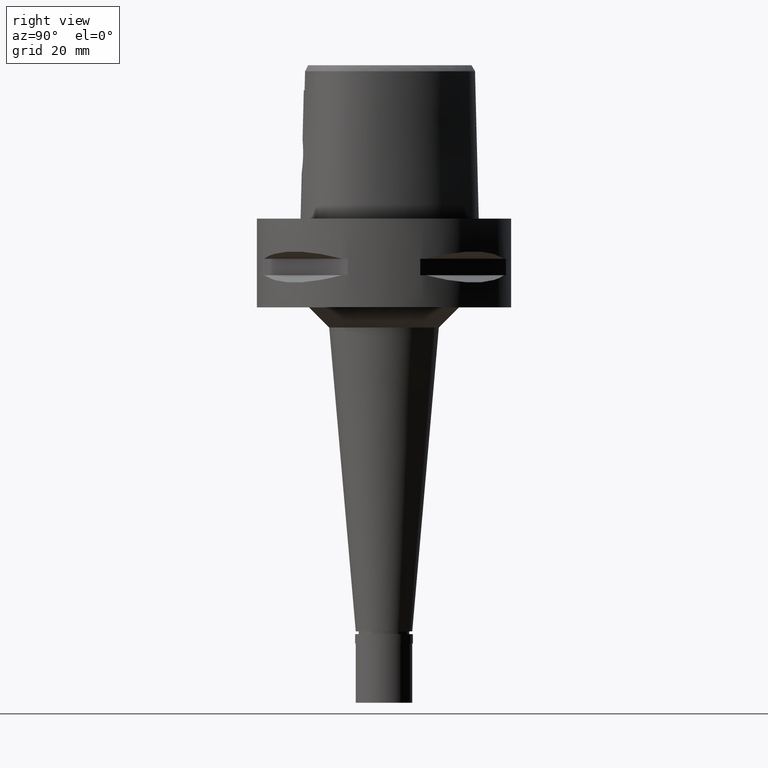
[diagram: clean part render]
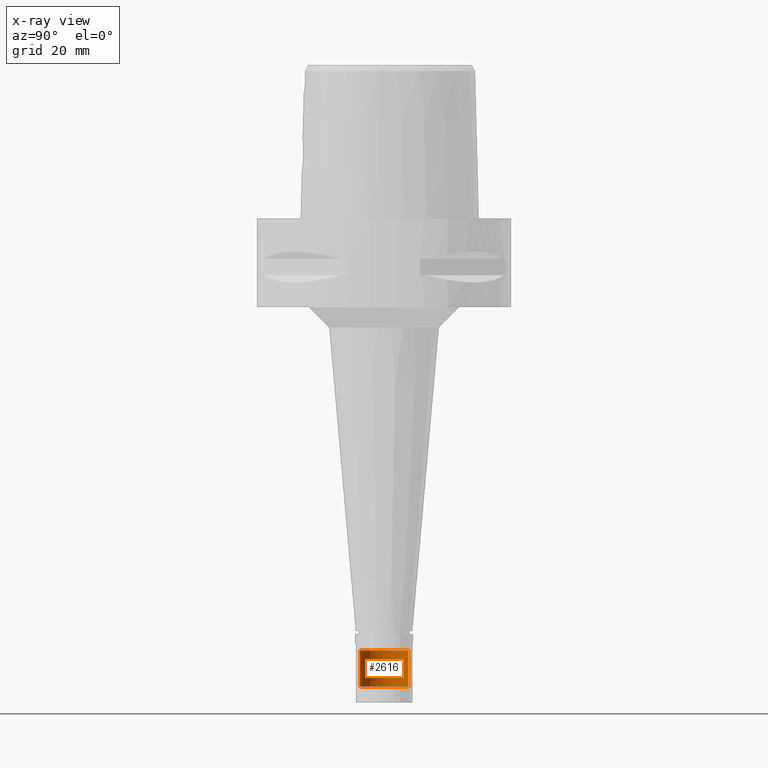
[diagram: x-ray — body ghosted, one internal face saturated and labeled with its STEP entity id]
A machine part, right view, then the same camera in x-ray: the body is ghosted and one INTERNAL B-rep face — a face not visible from any outside direction — is saturated and labeled: STEP entity #2616.
In plain terms, the highlighted cylindrical surface (edge-blend (fillet) strip) has radius 6 mm, axis along (0, 0, -1).
Its self-contained STEP definition (entity closure, byte-faithful):
#6 = CIRCLE ( 'NONE', #2426, 6.000000000000000000 ) ;
#12 = FACE_OUTER_BOUND ( 'NONE', #3905, .T. ) ;
#82 = DIRECTION ( 'NONE',  ( 0.0000000000000000000, 0.0000000000000000000, -1.000000000000000000 ) ) ;
#84 = CARTESIAN_POINT ( 'NONE',  ( 0.0000000000000000000, 1.295676313497999978E-14, 5.799999999999999822 ) ) ;
#156 = CARTESIAN_POINT ( 'NONE',  ( 0.0000000000000000000, -6.000000000000000000, -107.0000000000000000 ) ) ;
#231 = ORIENTED_EDGE ( 'NONE', *, *, #2166, .F. ) ;
#495 = DIRECTION ( 'NONE',  ( 0.0000000000000000000, 1.000000000000000000, 0.0000000000000000000 ) ) ;
#784 = ORIENTED_EDGE ( 'NONE', *, *, #1333, .T. ) ;
#797 = VECTOR ( 'NONE', #3041, 1000.000000000000000 ) ;
#862 = DIRECTION ( 'NONE',  ( 0.0000000000000000000, 0.0000000000000000000, -1.000000000000000000 ) ) ;
#896 = ORIENTED_EDGE ( 'NONE', *, *, #3288, .T. ) ;
#944 = EDGE_CURVE ( 'NONE', #3260, #4782, #6, .T. ) ;
#1217 = DIRECTION ( 'NONE',  ( 0.0000000000000000000, -1.000000000000000000, 0.0000000000000000000 ) ) ;
#1239 = LINE ( 'NONE', #3239, #2179 ) ;
#1333 = EDGE_CURVE ( 'NONE', #2849, #3260, #3802, .T. ) ;
#1704 = AXIS2_PLACEMENT_3D ( 'NONE', #84, #862, #1217 ) ;
#1805 = CIRCLE ( 'NONE', #4619, 6.000000000000000000 ) ;
#1820 = CARTESIAN_POINT ( 'NONE',  ( 0.0000000000000000000, 1.295676313497999978E-14, -107.0000000000000000 ) ) ;
#1895 = DIRECTION ( 'NONE',  ( 0.0000000000000000000, 0.0000000000000000000, -1.000000000000000000 ) ) ;
#1918 = CARTESIAN_POINT ( 'NONE',  ( 0.0000000000000000000, 6.000000000000000000, -116.0000000000000000 ) ) ;
#2166 = EDGE_CURVE ( 'NONE', #2224, #4782, #1239, .T. ) ;
#2179 = VECTOR ( 'NONE', #82, 1000.000000000000000 ) ;
#2224 = VERTEX_POINT ( 'NONE', #156 ) ;
#2354 = CARTESIAN_POINT ( 'NONE',  ( 0.0000000000000000000, 6.000000000000000000, -107.0000000000000000 ) ) ;
#2426 = AXIS2_PLACEMENT_3D ( 'NONE', #4791, #3940, #495 ) ;
#2616 = ADVANCED_FACE ( 'NONE', ( #12 ), #2877, .T. ) ;
#2849 = VERTEX_POINT ( 'NONE', #4476 ) ;
#2877 = CYLINDRICAL_SURFACE ( 'NONE', #1704, 6.000000000000000000 ) ;
#2884 = ORIENTED_EDGE ( 'NONE', *, *, #944, .T. ) ;
#3041 = DIRECTION ( 'NONE',  ( 0.0000000000000000000, 0.0000000000000000000, -1.000000000000000000 ) ) ;
#3045 = DIRECTION ( 'NONE',  ( 0.0000000000000000000, -1.000000000000000000, 0.0000000000000000000 ) ) ;
#3239 = CARTESIAN_POINT ( 'NONE',  ( 0.0000000000000000000, -6.000000000000000000, -107.0000000000000000 ) ) ;
#3260 = VERTEX_POINT ( 'NONE', #1918 ) ;
#3288 = EDGE_CURVE ( 'NONE', #2224, #2849, #1805, .T. ) ;
#3802 = LINE ( 'NONE', #2354, #797 ) ;
#3905 = EDGE_LOOP ( 'NONE', ( #2884, #231, #896, #784 ) ) ;
#3940 = DIRECTION ( 'NONE',  ( 0.0000000000000000000, 0.0000000000000000000, 1.000000000000000000 ) ) ;
#4476 = CARTESIAN_POINT ( 'NONE',  ( 0.0000000000000000000, 6.000000000000000000, -107.0000000000000000 ) ) ;
#4619 = AXIS2_PLACEMENT_3D ( 'NONE', #1820, #1895, #3045 ) ;
#4664 = CARTESIAN_POINT ( 'NONE',  ( 0.0000000000000000000, -6.000000000000000000, -116.0000000000000000 ) ) ;
#4782 = VERTEX_POINT ( 'NONE', #4664 ) ;
#4791 = CARTESIAN_POINT ( 'NONE',  ( 0.0000000000000000000, 1.295676313497999978E-14, -116.0000000000000000 ) ) ;